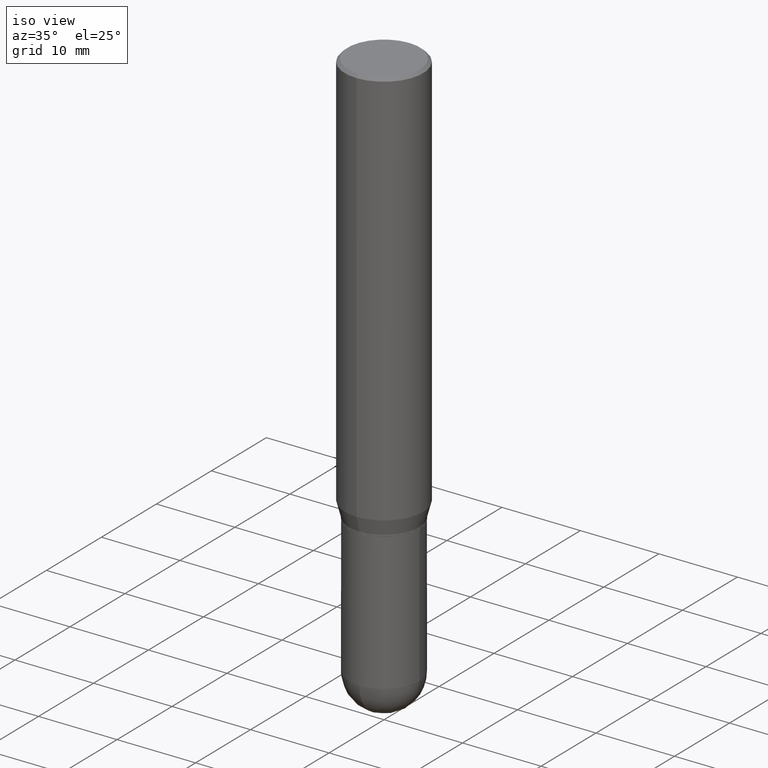
[diagram: clean part render]
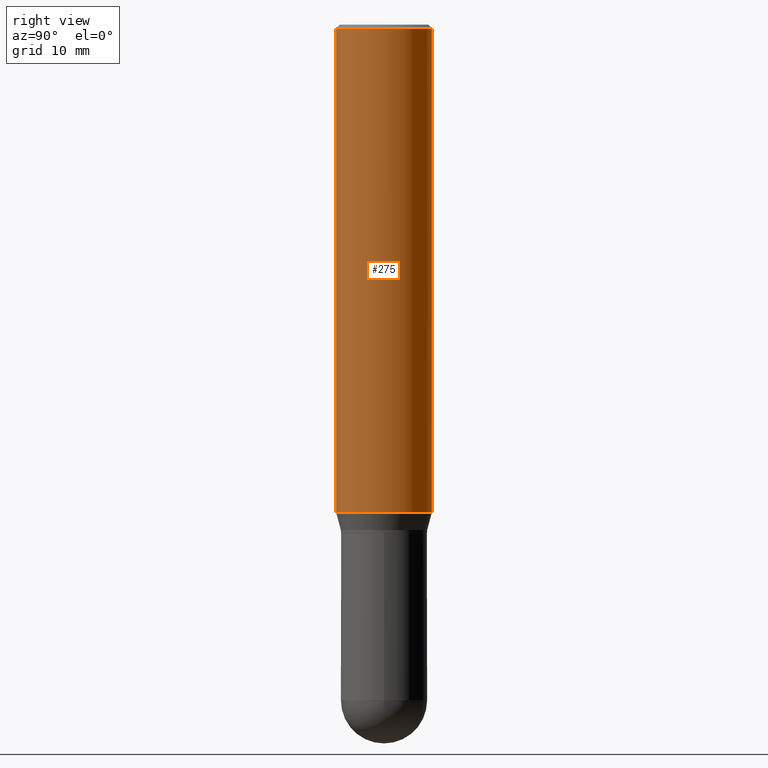
[diagram: tour spotlight — one face highlighted and labeled with its STEP entity id]
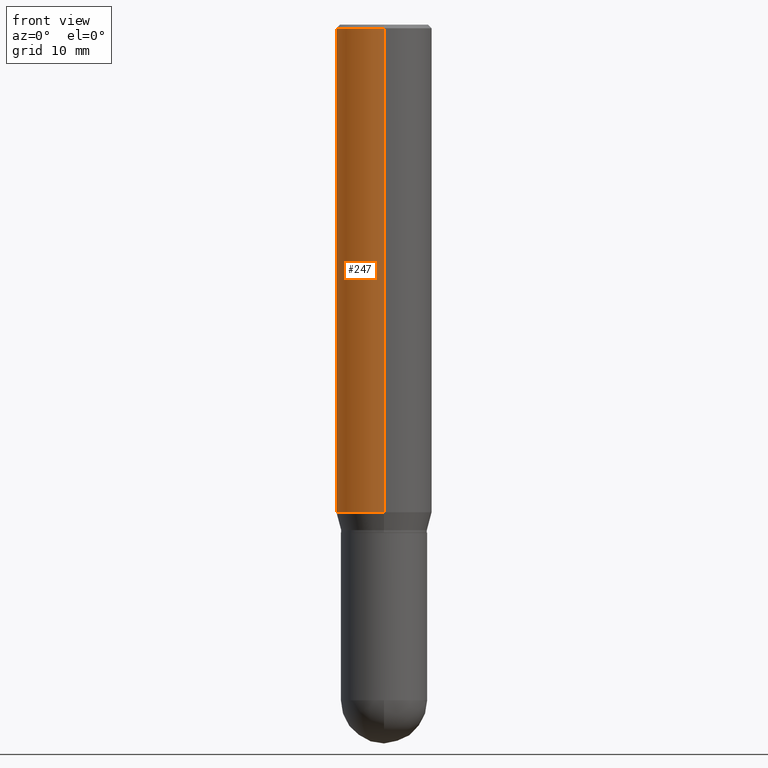
[diagram: tour spotlight — one face highlighted and labeled with its STEP entity id]
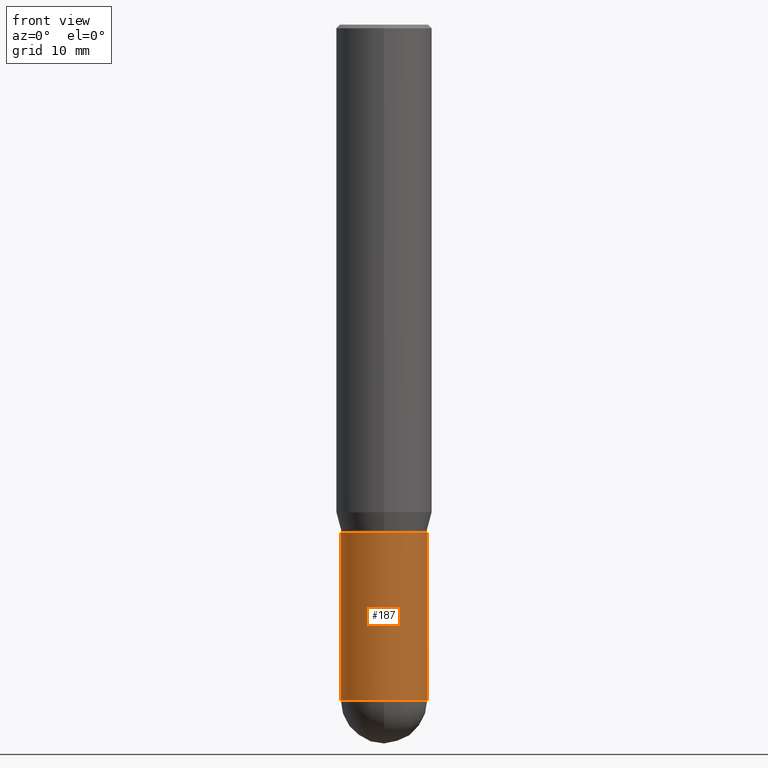
[diagram: tour spotlight — one face highlighted and labeled with its STEP entity id]
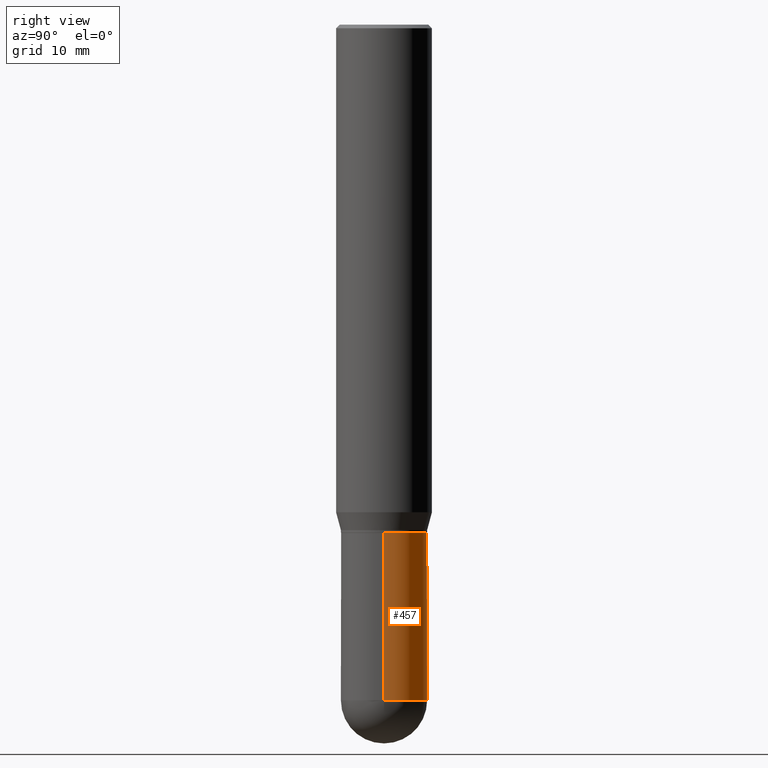
[diagram: tour spotlight — one face highlighted and labeled with its STEP entity id]
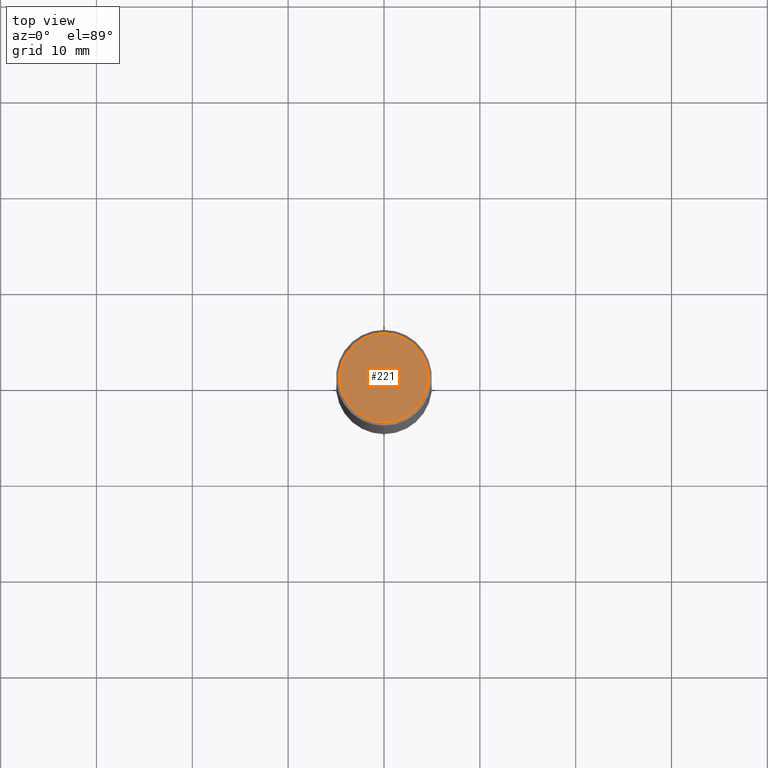
[diagram: tour spotlight — one face highlighted and labeled with its STEP entity id]
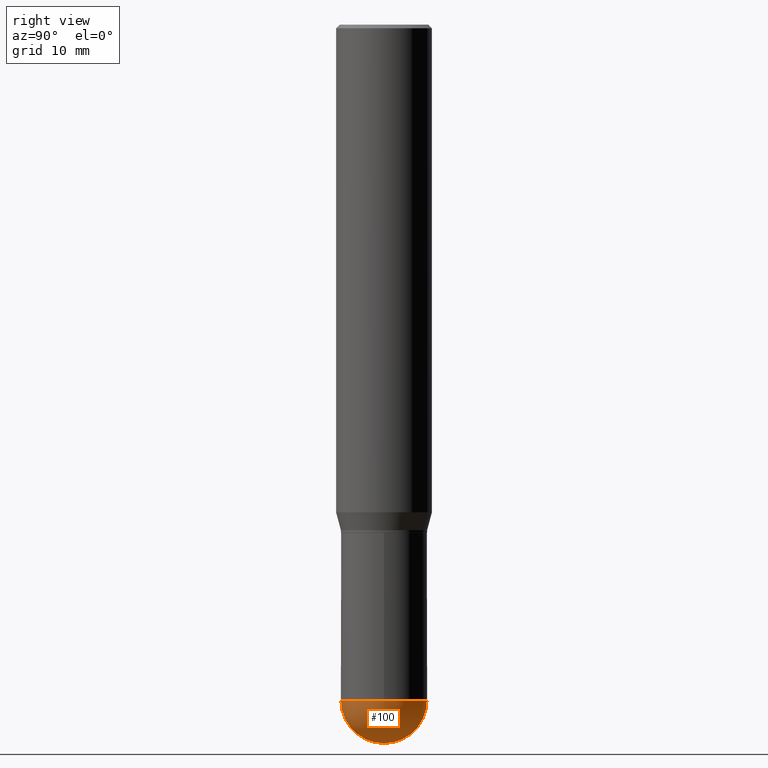
[diagram: tour spotlight — one face highlighted and labeled with its STEP entity id]
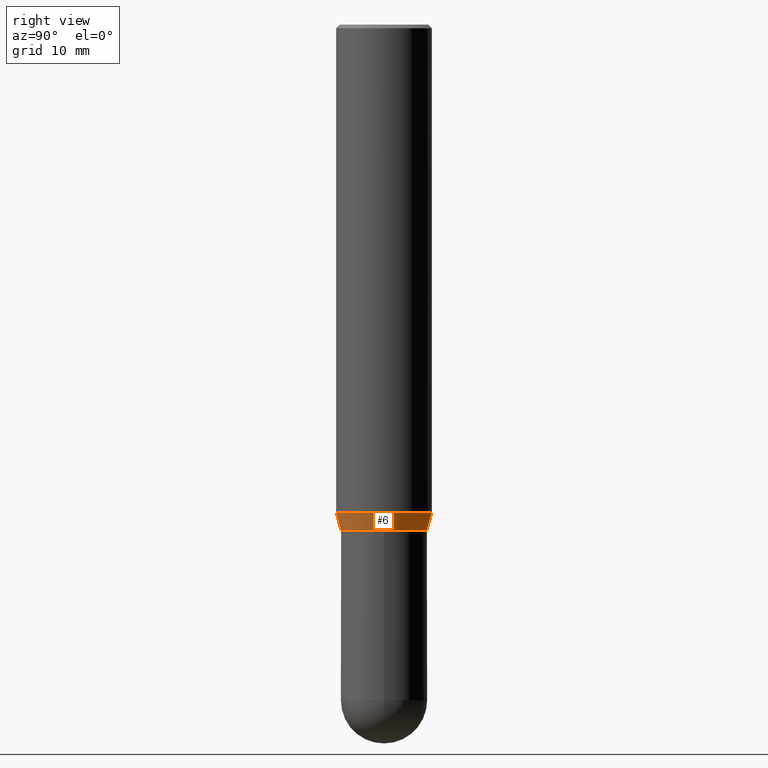
[diagram: tour spotlight — one face highlighted and labeled with its STEP entity id]
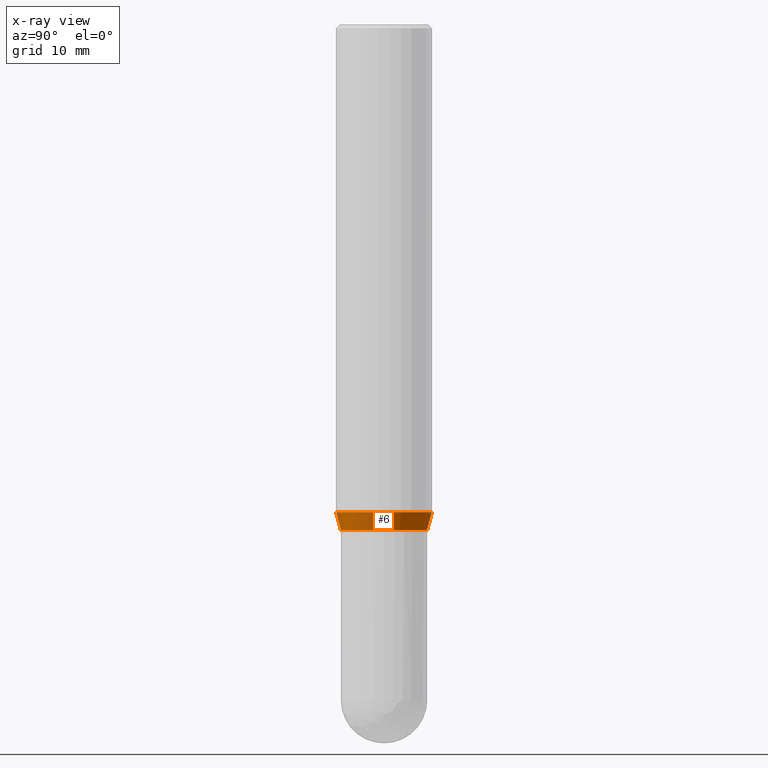
[diagram: x-ray of the same camera — body ghosted, this tour face saturated]
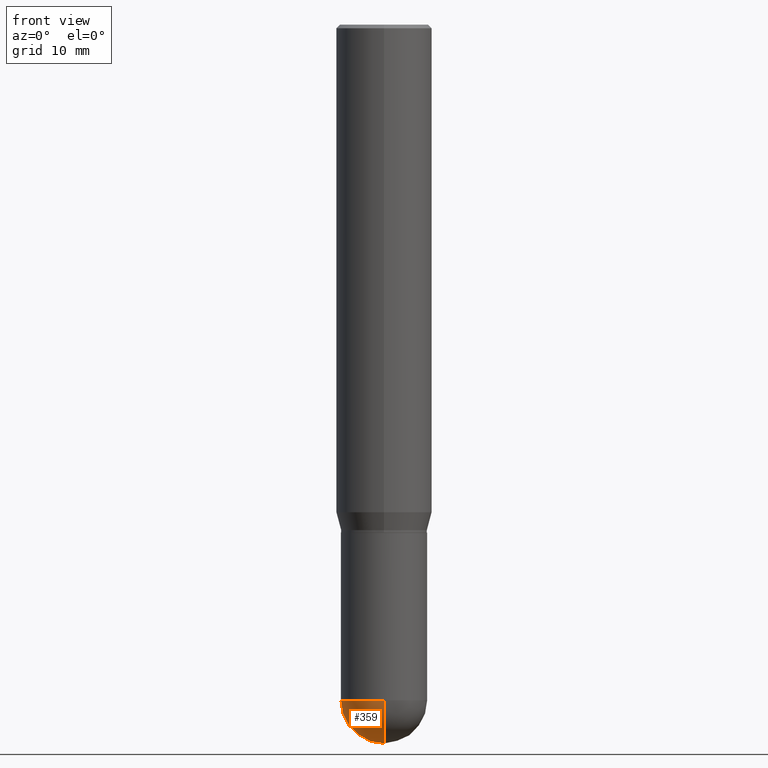
[diagram: tour spotlight — one face highlighted and labeled with its STEP entity id]
A machine part: a face-by-face anatomy tour. The part has 17 B-rep faces; the first image is the clean iso view, then the 8 largest visible faces are spotlighted one at a time (largest first), each with its STEP entity span.

Face 1 — right view, entity #275. In plain terms, the highlighted cylindrical surface (partial cylindrical patch) has radius 5 mm, axis along (-0, 0, 1).
Definition (entity closure, byte-faithful):
#23 = CIRCLE ( 'NONE', #377, 0.1968500000000000250 ) ;
#25 = DIRECTION ( 'NONE',  ( -6.982962677686265133E-15, -1.000000000000000000, 3.491137977679279424E-15 ) ) ;
#40 = CARTESIAN_POINT ( 'NONE',  ( 4.898810272835023287E-29, -6.993918213818736986E-15, -2.003178599090893464 ) ) ;
#47 = DIRECTION ( 'NONE',  ( -6.982962677686265922E-15, -1.000000000000000000, 4.163344669033675634E-15 ) ) ;
#58 = CYLINDRICAL_SURFACE ( 'NONE', #434, 0.1968499999999999694 ) ;
#82 = CIRCLE ( 'NONE', #361, 0.1968499999999999694 ) ;
#84 = VECTOR ( 'NONE', #116, 39.37007874015748143 ) ;
#103 = CARTESIAN_POINT ( 'NONE',  ( 1.398703375343756802E-15, 0.1968499999999999694, -6.872840998875648867E-16 ) ) ;
#107 = DIRECTION ( 'NONE',  ( -2.445518475016785291E-29, 3.491410210249250493E-15, 1.000000000000000000 ) ) ;
#113 = EDGE_LOOP ( 'NONE', ( #358, #182, #274, #266 ) ) ;
#116 = DIRECTION ( 'NONE',  ( -2.445518475016785291E-29, 3.491410210249250493E-15, 1.000000000000000000 ) ) ;
#131 = EDGE_CURVE ( 'NONE', #363, #279, #82, .T. ) ;
#135 = CARTESIAN_POINT ( 'NONE',  ( 0.000000000000000000, 0.000000000000000000, 0.000000000000000000 ) ) ;
#146 = CARTESIAN_POINT ( 'NONE',  ( 3.668277712525295050E-31, -5.237115315374042436E-17, -0.01500000000000047823 ) ) ;
#150 = CARTESIAN_POINT ( 'NONE',  ( -1.374596203102492502E-15, -0.1968500000000069916, -2.003178599090893020 ) ) ;
#182 = ORIENTED_EDGE ( 'NONE', *, *, #475, .T. ) ;
#193 = VERTEX_POINT ( 'NONE', #299 ) ;
#214 = LINE ( 'NONE', #103, #478 ) ;
#231 = LINE ( 'NONE', #378, #84 ) ;
#232 = VERTEX_POINT ( 'NONE', #297 ) ;
#251 = CARTESIAN_POINT ( 'NONE',  ( 1.398703375343805514E-15, 0.1968499999999929750, -2.003178599090894352 ) ) ;
#266 = ORIENTED_EDGE ( 'NONE', *, *, #343, .F. ) ;
#274 = ORIENTED_EDGE ( 'NONE', *, *, #320, .F. ) ;
#275 = ADVANCED_FACE ( 'NONE', ( #482 ), #58, .T. ) ;
#279 = VERTEX_POINT ( 'NONE', #251 ) ;
#297 = CARTESIAN_POINT ( 'NONE',  ( 1.398703375343806303E-15, 0.1968499999999999139, -0.01500000000000116518 ) ) ;
#299 = CARTESIAN_POINT ( 'NONE',  ( -1.374596203102541017E-15, -0.1968500000000000805, -0.01499999999999979128 ) ) ;
#320 = EDGE_CURVE ( 'NONE', #193, #232, #23, .T. ) ;
#321 = DIRECTION ( 'NONE',  ( -2.445518475016785291E-29, 3.491410210249250493E-15, 1.000000000000000000 ) ) ;
#343 = EDGE_CURVE ( 'NONE', #363, #193, #231, .T. ) ;
#358 = ORIENTED_EDGE ( 'NONE', *, *, #131, .T. ) ;
#361 = AXIS2_PLACEMENT_3D ( 'NONE', #40, #321, #47 ) ;
#363 = VERTEX_POINT ( 'NONE', #150 ) ;
#373 = DIRECTION ( 'NONE',  ( -6.982962677686265922E-15, -1.000000000000000000, 3.491410210249250493E-15 ) ) ;
#377 = AXIS2_PLACEMENT_3D ( 'NONE', #146, #462, #25 ) ;
#378 = CARTESIAN_POINT ( 'NONE',  ( -1.374596203102541214E-15, -0.1968499999999999694, 6.872840998875648867E-16 ) ) ;
#434 = AXIS2_PLACEMENT_3D ( 'NONE', #135, #438, #373 ) ;
#438 = DIRECTION ( 'NONE',  ( -2.445518475016785291E-29, 3.491410210249250493E-15, 1.000000000000000000 ) ) ;
#462 = DIRECTION ( 'NONE',  ( -2.445518475016785291E-29, 3.491410210249250493E-15, 1.000000000000000000 ) ) ;
#475 = EDGE_CURVE ( 'NONE', #279, #232, #214, .T. ) ;
#478 = VECTOR ( 'NONE', #107, 39.37007874015748143 ) ;
#482 = FACE_OUTER_BOUND ( 'NONE', #113, .T. ) ;

Face 2 — front view, entity #247. In plain terms, the highlighted cylindrical surface (partial cylindrical patch) has radius 5 mm, axis along (-0, 0, 1).
Definition (entity closure, byte-faithful):
#56 = EDGE_CURVE ( 'NONE', #279, #363, #167, .T. ) ;
#65 = EDGE_CURVE ( 'NONE', #232, #193, #460, .T. ) ;
#70 = AXIS2_PLACEMENT_3D ( 'NONE', #91, #396, #125 ) ;
#84 = VECTOR ( 'NONE', #116, 39.37007874015748143 ) ;
#91 = CARTESIAN_POINT ( 'NONE',  ( 4.898810272835023287E-29, -6.993918213818736986E-15, -2.003178599090893464 ) ) ;
#103 = CARTESIAN_POINT ( 'NONE',  ( 1.398703375343756802E-15, 0.1968499999999999694, -6.872840998875648867E-16 ) ) ;
#107 = DIRECTION ( 'NONE',  ( -2.445518475016785291E-29, 3.491410210249250493E-15, 1.000000000000000000 ) ) ;
#116 = DIRECTION ( 'NONE',  ( -2.445518475016785291E-29, 3.491410210249250493E-15, 1.000000000000000000 ) ) ;
#125 = DIRECTION ( 'NONE',  ( -6.982962677686265922E-15, -1.000000000000000000, 4.163344669033675634E-15 ) ) ;
#150 = CARTESIAN_POINT ( 'NONE',  ( -1.374596203102492502E-15, -0.1968500000000069916, -2.003178599090893020 ) ) ;
#164 = ORIENTED_EDGE ( 'NONE', *, *, #65, .F. ) ;
#167 = CIRCLE ( 'NONE', #70, 0.1968499999999999694 ) ;
#173 = ORIENTED_EDGE ( 'NONE', *, *, #56, .T. ) ;
#174 = DIRECTION ( 'NONE',  ( -2.445518475016785291E-29, 3.491410210249250493E-15, 1.000000000000000000 ) ) ;
#193 = VERTEX_POINT ( 'NONE', #299 ) ;
#205 = CARTESIAN_POINT ( 'NONE',  ( 3.668277712525295050E-31, -5.237115315374042436E-17, -0.01500000000000047823 ) ) ;
#214 = LINE ( 'NONE', #103, #478 ) ;
#223 = FACE_OUTER_BOUND ( 'NONE', #262, .T. ) ;
#231 = LINE ( 'NONE', #378, #84 ) ;
#232 = VERTEX_POINT ( 'NONE', #297 ) ;
#247 = ADVANCED_FACE ( 'NONE', ( #223 ), #292, .T. ) ;
#251 = CARTESIAN_POINT ( 'NONE',  ( 1.398703375343805514E-15, 0.1968499999999929750, -2.003178599090894352 ) ) ;
#262 = EDGE_LOOP ( 'NONE', ( #379, #173, #350, #164 ) ) ;
#279 = VERTEX_POINT ( 'NONE', #251 ) ;
#292 = CYLINDRICAL_SURFACE ( 'NONE', #472, 0.1968499999999999694 ) ;
#297 = CARTESIAN_POINT ( 'NONE',  ( 1.398703375343806303E-15, 0.1968499999999999139, -0.01500000000000116518 ) ) ;
#299 = CARTESIAN_POINT ( 'NONE',  ( -1.374596203102541017E-15, -0.1968500000000000805, -0.01499999999999979128 ) ) ;
#324 = AXIS2_PLACEMENT_3D ( 'NONE', #205, #400, #476 ) ;
#328 = DIRECTION ( 'NONE',  ( -6.982962677686265922E-15, -1.000000000000000000, 3.491410210249250493E-15 ) ) ;
#343 = EDGE_CURVE ( 'NONE', #363, #193, #231, .T. ) ;
#350 = ORIENTED_EDGE ( 'NONE', *, *, #343, .T. ) ;
#363 = VERTEX_POINT ( 'NONE', #150 ) ;
#378 = CARTESIAN_POINT ( 'NONE',  ( -1.374596203102541214E-15, -0.1968499999999999694, 6.872840998875648867E-16 ) ) ;
#379 = ORIENTED_EDGE ( 'NONE', *, *, #475, .F. ) ;
#396 = DIRECTION ( 'NONE',  ( -2.445518475016785291E-29, 3.491410210249250493E-15, 1.000000000000000000 ) ) ;
#400 = DIRECTION ( 'NONE',  ( -2.445518475016785291E-29, 3.491410210249250493E-15, 1.000000000000000000 ) ) ;
#402 = CARTESIAN_POINT ( 'NONE',  ( 0.000000000000000000, 0.000000000000000000, 0.000000000000000000 ) ) ;
#460 = CIRCLE ( 'NONE', #324, 0.1968500000000000250 ) ;
#472 = AXIS2_PLACEMENT_3D ( 'NONE', #402, #174, #328 ) ;
#475 = EDGE_CURVE ( 'NONE', #279, #232, #214, .T. ) ;
#476 = DIRECTION ( 'NONE',  ( -6.982962677686265133E-15, -1.000000000000000000, 3.491137977679279424E-15 ) ) ;
#478 = VECTOR ( 'NONE', #107, 39.37007874015748143 ) ;

Face 3 — front view, entity #187. In plain terms, the highlighted cylindrical surface (partial cylindrical patch) has radius 4.4996 mm, axis along (-0, 0, 1).
Definition (entity closure, byte-faithful):
#44 = EDGE_CURVE ( 'NONE', #287, #480, #217, .T. ) ;
#61 = LINE ( 'NONE', #139, #168 ) ;
#66 = DIRECTION ( 'NONE',  ( 1.000000000000000000, -6.982962677686266711E-15, 4.876176775795934672E-29 ) ) ;
#89 = CARTESIAN_POINT ( 'NONE',  ( 6.787765491887772680E-29, -9.691130178159974964E-15, -2.775649999999999729 ) ) ;
#96 = AXIS2_PLACEMENT_3D ( 'NONE', #326, #126, #477 ) ;
#97 = DIRECTION ( 'NONE',  ( -2.445468806185136597E-29, 3.491481338843145583E-15, 1.000000000000000000 ) ) ;
#99 = LINE ( 'NONE', #330, #440 ) ;
#106 = EDGE_CURVE ( 'NONE', #300, #309, #302, .T. ) ;
#111 = ORIENTED_EDGE ( 'NONE', *, *, #44, .F. ) ;
#114 = AXIS2_PLACEMENT_3D ( 'NONE', #89, #163, #436 ) ;
#126 = DIRECTION ( 'NONE',  ( -2.445468806185136597E-29, 3.491481338843145583E-15, 1.000000000000000000 ) ) ;
#137 = CIRCLE ( 'NONE', #503, 0.1771500000000000574 ) ;
#139 = CARTESIAN_POINT ( 'NONE',  ( -0.1771500000000000574, 1.258726456399017887E-15, -8.713893512386568128E-30 ) ) ;
#163 = DIRECTION ( 'NONE',  ( -2.445468806185136597E-29, 3.491481338843145583E-15, 1.000000000000000000 ) ) ;
#168 = VECTOR ( 'NONE', #222, 39.37007874015748143 ) ;
#181 = CYLINDRICAL_SURFACE ( 'NONE', #511, 0.1771500000000000574 ) ;
#187 = ADVANCED_FACE ( 'NONE', ( #367 ), #181, .T. ) ;
#217 = CIRCLE ( 'NONE', #96, 0.1771500000000000852 ) ;
#222 = DIRECTION ( 'NONE',  ( -2.445468806185136877E-29, 3.491481338843145188E-15, 1.000000000000000000 ) ) ;
#264 = EDGE_CURVE ( 'NONE', #300, #287, #61, .T. ) ;
#269 = DIRECTION ( 'NONE',  ( 1.000000000000000000, -6.982962677686270655E-15, 0.000000000000000000 ) ) ;
#287 = VERTEX_POINT ( 'NONE', #365 ) ;
#294 = CARTESIAN_POINT ( 'NONE',  ( 0.000000000000000000, 0.000000000000000000, 0.000000000000000000 ) ) ;
#298 = DIRECTION ( 'NONE',  ( -2.445468806185136877E-29, 3.491481338843145188E-15, 1.000000000000000000 ) ) ;
#300 = VERTEX_POINT ( 'NONE', #499 ) ;
#302 = CIRCLE ( 'NONE', #114, 0.1771500000000000574 ) ;
#308 = CARTESIAN_POINT ( 'NONE',  ( 6.787765491887772680E-29, -9.691130178159974964E-15, -2.775649999999999729 ) ) ;
#309 = VERTEX_POINT ( 'NONE', #315 ) ;
#310 = DIRECTION ( 'NONE',  ( -2.445468806185136597E-29, 3.491481338843145583E-15, 1.000000000000000000 ) ) ;
#312 = ORIENTED_EDGE ( 'NONE', *, *, #479, .T. ) ;
#313 = EDGE_CURVE ( 'NONE', #309, #316, #137, .T. ) ;
#315 = CARTESIAN_POINT ( 'NONE',  ( -1.258726456398949454E-15, -0.1771500000000097441, -2.775649999999999284 ) ) ;
#316 = VERTEX_POINT ( 'NONE', #414 ) ;
#326 = CARTESIAN_POINT ( 'NONE',  ( 5.102959757866523939E-29, -7.285674109763990928E-15, -2.086699999999999999 ) ) ;
#330 = CARTESIAN_POINT ( 'NONE',  ( 0.1771500000000000574, -1.237031838352122591E-15, 8.638147158322501361E-30 ) ) ;
#334 = CARTESIAN_POINT ( 'NONE',  ( 0.1771500000000000852, -8.522705948116114900E-15, -2.086699999999999999 ) ) ;
#356 = ORIENTED_EDGE ( 'NONE', *, *, #313, .T. ) ;
#365 = CARTESIAN_POINT ( 'NONE',  ( -0.1771500000000000852, -7.229675687562965256E-15, -2.086699999999999999 ) ) ;
#367 = FACE_OUTER_BOUND ( 'NONE', #419, .T. ) ;
#385 = ORIENTED_EDGE ( 'NONE', *, *, #106, .T. ) ;
#414 = CARTESIAN_POINT ( 'NONE',  ( 0.1771500000000000574, -9.725433982314104551E-15, -2.775649999999999729 ) ) ;
#419 = EDGE_LOOP ( 'NONE', ( #500, #385, #356, #312, #111 ) ) ;
#436 = DIRECTION ( 'NONE',  ( 1.000000000000000000, -6.982962677686270655E-15, 0.000000000000000000 ) ) ;
#440 = VECTOR ( 'NONE', #298, 39.37007874015748143 ) ;
#477 = DIRECTION ( 'NONE',  ( 1.000000000000000000, -6.982962677686269077E-15, 0.000000000000000000 ) ) ;
#479 = EDGE_CURVE ( 'NONE', #316, #480, #99, .T. ) ;
#480 = VERTEX_POINT ( 'NONE', #334 ) ;
#499 = CARTESIAN_POINT ( 'NONE',  ( -0.1771500000000000574, -7.229675687562965256E-15, -2.775649999999999729 ) ) ;
#500 = ORIENTED_EDGE ( 'NONE', *, *, #264, .F. ) ;
#503 = AXIS2_PLACEMENT_3D ( 'NONE', #308, #310, #269 ) ;
#511 = AXIS2_PLACEMENT_3D ( 'NONE', #294, #97, #66 ) ;

Face 4 — right view, entity #457. In plain terms, the highlighted cylindrical surface (partial cylindrical patch) has radius 4.4996 mm, axis along (-0, 0, 1).
Definition (entity closure, byte-faithful):
#1 = CARTESIAN_POINT ( 'NONE',  ( 6.787765491887772680E-29, -9.691130178159974964E-15, -2.775649999999999729 ) ) ;
#4 = ORIENTED_EDGE ( 'NONE', *, *, #204, .T. ) ;
#7 = CARTESIAN_POINT ( 'NONE',  ( 1.237031838352190236E-15, 0.1771499999999903430, -2.775650000000000173 ) ) ;
#15 = AXIS2_PLACEMENT_3D ( 'NONE', #1, #360, #170 ) ;
#16 = EDGE_CURVE ( 'NONE', #316, #132, #152, .T. ) ;
#28 = CARTESIAN_POINT ( 'NONE',  ( 5.102959757866523939E-29, -7.285674109763990928E-15, -2.086699999999999999 ) ) ;
#41 = CIRCLE ( 'NONE', #484, 0.1771500000000000574 ) ;
#61 = LINE ( 'NONE', #139, #168 ) ;
#80 = FACE_OUTER_BOUND ( 'NONE', #351, .T. ) ;
#99 = LINE ( 'NONE', #330, #440 ) ;
#110 = CYLINDRICAL_SURFACE ( 'NONE', #243, 0.1771500000000000574 ) ;
#132 = VERTEX_POINT ( 'NONE', #7 ) ;
#139 = CARTESIAN_POINT ( 'NONE',  ( -0.1771500000000000574, 1.258726456399017887E-15, -8.713893512386568128E-30 ) ) ;
#140 = DIRECTION ( 'NONE',  ( -2.445468806185136597E-29, 3.491481338843145583E-15, 1.000000000000000000 ) ) ;
#152 = CIRCLE ( 'NONE', #15, 0.1771500000000000574 ) ;
#168 = VECTOR ( 'NONE', #222, 39.37007874015748143 ) ;
#170 = DIRECTION ( 'NONE',  ( 1.000000000000000000, -6.982962677686270655E-15, 0.000000000000000000 ) ) ;
#192 = DIRECTION ( 'NONE',  ( 1.000000000000000000, -6.982962677686269077E-15, 0.000000000000000000 ) ) ;
#204 = EDGE_CURVE ( 'NONE', #132, #300, #41, .T. ) ;
#208 = ORIENTED_EDGE ( 'NONE', *, *, #479, .F. ) ;
#222 = DIRECTION ( 'NONE',  ( -2.445468806185136877E-29, 3.491481338843145188E-15, 1.000000000000000000 ) ) ;
#243 = AXIS2_PLACEMENT_3D ( 'NONE', #265, #496, #305 ) ;
#264 = EDGE_CURVE ( 'NONE', #300, #287, #61, .T. ) ;
#265 = CARTESIAN_POINT ( 'NONE',  ( 0.000000000000000000, 0.000000000000000000, 0.000000000000000000 ) ) ;
#287 = VERTEX_POINT ( 'NONE', #365 ) ;
#298 = DIRECTION ( 'NONE',  ( -2.445468806185136877E-29, 3.491481338843145188E-15, 1.000000000000000000 ) ) ;
#300 = VERTEX_POINT ( 'NONE', #499 ) ;
#305 = DIRECTION ( 'NONE',  ( 1.000000000000000000, -6.982962677686266711E-15, 4.876176775795934672E-29 ) ) ;
#316 = VERTEX_POINT ( 'NONE', #414 ) ;
#330 = CARTESIAN_POINT ( 'NONE',  ( 0.1771500000000000574, -1.237031838352122591E-15, 8.638147158322501361E-30 ) ) ;
#331 = DIRECTION ( 'NONE',  ( 1.000000000000000000, -6.982962677686270655E-15, 0.000000000000000000 ) ) ;
#334 = CARTESIAN_POINT ( 'NONE',  ( 0.1771500000000000852, -8.522705948116114900E-15, -2.086699999999999999 ) ) ;
#344 = ORIENTED_EDGE ( 'NONE', *, *, #432, .F. ) ;
#345 = DIRECTION ( 'NONE',  ( -2.445468806185136597E-29, 3.491481338843145583E-15, 1.000000000000000000 ) ) ;
#346 = CIRCLE ( 'NONE', #449, 0.1771500000000000852 ) ;
#351 = EDGE_LOOP ( 'NONE', ( #4, #391, #344, #208, #509 ) ) ;
#360 = DIRECTION ( 'NONE',  ( -2.445468806185136597E-29, 3.491481338843145583E-15, 1.000000000000000000 ) ) ;
#365 = CARTESIAN_POINT ( 'NONE',  ( -0.1771500000000000852, -7.229675687562965256E-15, -2.086699999999999999 ) ) ;
#391 = ORIENTED_EDGE ( 'NONE', *, *, #264, .T. ) ;
#414 = CARTESIAN_POINT ( 'NONE',  ( 0.1771500000000000574, -9.725433982314104551E-15, -2.775649999999999729 ) ) ;
#432 = EDGE_CURVE ( 'NONE', #480, #287, #346, .T. ) ;
#440 = VECTOR ( 'NONE', #298, 39.37007874015748143 ) ;
#442 = CARTESIAN_POINT ( 'NONE',  ( 6.787765491887772680E-29, -9.691130178159974964E-15, -2.775649999999999729 ) ) ;
#449 = AXIS2_PLACEMENT_3D ( 'NONE', #28, #345, #192 ) ;
#457 = ADVANCED_FACE ( 'NONE', ( #80 ), #110, .T. ) ;
#479 = EDGE_CURVE ( 'NONE', #316, #480, #99, .T. ) ;
#480 = VERTEX_POINT ( 'NONE', #334 ) ;
#484 = AXIS2_PLACEMENT_3D ( 'NONE', #442, #140, #331 ) ;
#496 = DIRECTION ( 'NONE',  ( -2.445468806185136597E-29, 3.491481338843145583E-15, 1.000000000000000000 ) ) ;
#499 = CARTESIAN_POINT ( 'NONE',  ( -0.1771500000000000574, -7.229675687562965256E-15, -2.775649999999999729 ) ) ;
#509 = ORIENTED_EDGE ( 'NONE', *, *, #16, .T. ) ;

Face 5 — top view, entity #221. In plain terms, the highlighted planar face has unit normal (0, -0, -1).
Definition (entity closure, byte-faithful):
#48 = CIRCLE ( 'NONE', #353, 0.1818500000000000116 ) ;
#104 = CARTESIAN_POINT ( 'NONE',  ( 1.322223983019894726E-15, 0.1818500000000000116, -1.113623735444311959E-15 ) ) ;
#141 = DIRECTION ( 'NONE',  ( -6.982962677686265133E-15, -1.000000000000000000, 3.491410210249250888E-15 ) ) ;
#147 = EDGE_CURVE ( 'NONE', #317, #202, #48, .T. ) ;
#177 = FACE_OUTER_BOUND ( 'NONE', #348, .T. ) ;
#197 = CIRCLE ( 'NONE', #388, 0.1818500000000000116 ) ;
#202 = VERTEX_POINT ( 'NONE', #104 ) ;
#216 = CARTESIAN_POINT ( 'NONE',  ( 1.170696077981349666E-44, -1.671375735460261501E-30, -4.787107887104857586E-16 ) ) ;
#221 = ADVANCED_FACE ( 'NONE', ( #177 ), #303, .F. ) ;
#260 = DIRECTION ( 'NONE',  ( -2.445518475016785291E-29, 3.491410210249250493E-15, 1.000000000000000000 ) ) ;
#277 = ORIENTED_EDGE ( 'NONE', *, *, #147, .T. ) ;
#283 = DIRECTION ( 'NONE',  ( -2.445518475016785291E-29, 3.491410210249250493E-15, 1.000000000000000000 ) ) ;
#303 = PLANE ( 'NONE',  #329 ) ;
#304 = ORIENTED_EDGE ( 'NONE', *, *, #468, .T. ) ;
#317 = VERTEX_POINT ( 'NONE', #418 ) ;
#327 = DIRECTION ( 'NONE',  ( 2.445518475016784731E-29, -3.491410210249250493E-15, -1.000000000000000000 ) ) ;
#329 = AXIS2_PLACEMENT_3D ( 'NONE', #486, #327, #335 ) ;
#335 = DIRECTION ( 'NONE',  ( 6.982962677686265922E-15, 1.000000000000000000, -3.491410210249250493E-15 ) ) ;
#348 = EDGE_LOOP ( 'NONE', ( #304, #277 ) ) ;
#353 = AXIS2_PLACEMENT_3D ( 'NONE', #473, #283, #393 ) ;
#388 = AXIS2_PLACEMENT_3D ( 'NONE', #216, #260, #141 ) ;
#393 = DIRECTION ( 'NONE',  ( -6.982962677686265133E-15, -1.000000000000000000, 3.491410210249250888E-15 ) ) ;
#418 = CARTESIAN_POINT ( 'NONE',  ( -1.299035295878039226E-15, -0.1818500000000000116, 1.562021580233405403E-16 ) ) ;
#468 = EDGE_CURVE ( 'NONE', #202, #317, #197, .T. ) ;
#473 = CARTESIAN_POINT ( 'NONE',  ( 1.170696077981349666E-44, -1.671375735460261501E-30, -4.787107887104857586E-16 ) ) ;
#486 = CARTESIAN_POINT ( 'NONE',  ( 1.269851762937247450E-15, 0.1818500000000000116, -8.742683410890690304E-16 ) ) ;

Face 6 — right view, entity #100. In plain terms, the highlighted spherical surface has radius 4.4996 mm.
Definition (entity closure, byte-faithful):
#1 = CARTESIAN_POINT ( 'NONE',  ( 6.787765491887772680E-29, -9.691130178159974964E-15, -2.775649999999999729 ) ) ;
#7 = CARTESIAN_POINT ( 'NONE',  ( 1.237031838352190236E-15, 0.1771499999999903430, -2.775650000000000173 ) ) ;
#9 = ORIENTED_EDGE ( 'NONE', *, *, #190, .T. ) ;
#10 = FACE_OUTER_BOUND ( 'NONE', #78, .T. ) ;
#14 = CARTESIAN_POINT ( 'NONE',  ( 6.813022828238686978E-29, -9.654960234947156736E-15, -2.775649999999999729 ) ) ;
#15 = AXIS2_PLACEMENT_3D ( 'NONE', #1, #360, #170 ) ;
#16 = EDGE_CURVE ( 'NONE', #316, #132, #152, .T. ) ;
#78 = EDGE_LOOP ( 'NONE', ( #189, #9, #456, #171 ) ) ;
#100 = ADVANCED_FACE ( 'NONE', ( #10 ), #398, .T. ) ;
#132 = VERTEX_POINT ( 'NONE', #7 ) ;
#137 = CIRCLE ( 'NONE', #503, 0.1771500000000000574 ) ;
#152 = CIRCLE ( 'NONE', #15, 0.1771500000000000574 ) ;
#165 = EDGE_CURVE ( 'NONE', #427, #309, #268, .T. ) ;
#170 = DIRECTION ( 'NONE',  ( 1.000000000000000000, -6.982962677686270655E-15, 0.000000000000000000 ) ) ;
#171 = ORIENTED_EDGE ( 'NONE', *, *, #313, .F. ) ;
#189 = ORIENTED_EDGE ( 'NONE', *, *, #165, .F. ) ;
#190 = EDGE_CURVE ( 'NONE', #427, #132, #439, .T. ) ;
#203 = AXIS2_PLACEMENT_3D ( 'NONE', #14, #446, #332 ) ;
#215 = CARTESIAN_POINT ( 'NONE',  ( 6.813022828238686978E-29, -9.654960234947156736E-15, -2.775649999999999729 ) ) ;
#261 = DIRECTION ( 'NONE',  ( -7.105427357600999492E-15, -1.000000000000000000, 0.000000000000000000 ) ) ;
#268 = CIRCLE ( 'NONE', #319, 0.1771500000000000574 ) ;
#269 = DIRECTION ( 'NONE',  ( 1.000000000000000000, -6.982962677686270655E-15, 0.000000000000000000 ) ) ;
#280 = AXIS2_PLACEMENT_3D ( 'NONE', #394, #429, #289 ) ;
#289 = DIRECTION ( 'NONE',  ( 6.982962677686265133E-15, 1.000000000000000000, -3.084220145260245435E-15 ) ) ;
#308 = CARTESIAN_POINT ( 'NONE',  ( 6.787765491887772680E-29, -9.691130178159974964E-15, -2.775649999999999729 ) ) ;
#309 = VERTEX_POINT ( 'NONE', #315 ) ;
#310 = DIRECTION ( 'NONE',  ( -2.445468806185136597E-29, 3.491481338843145583E-15, 1.000000000000000000 ) ) ;
#313 = EDGE_CURVE ( 'NONE', #309, #316, #137, .T. ) ;
#315 = CARTESIAN_POINT ( 'NONE',  ( -1.258726456398949454E-15, -0.1771500000000097441, -2.775649999999999284 ) ) ;
#316 = VERTEX_POINT ( 'NONE', #414 ) ;
#319 = AXIS2_PLACEMENT_3D ( 'NONE', #215, #451, #261 ) ;
#332 = DIRECTION ( 'NONE',  ( 6.982962677686264344E-15, 1.000000000000000000, 0.000000000000000000 ) ) ;
#360 = DIRECTION ( 'NONE',  ( -2.445468806185136597E-29, 3.491481338843145583E-15, 1.000000000000000000 ) ) ;
#394 = CARTESIAN_POINT ( 'NONE',  ( 6.813022828238686978E-29, -9.654960234947156736E-15, -2.775649999999999729 ) ) ;
#398 = SPHERICAL_SURFACE ( 'NONE', #280, 0.1771500000000000574 ) ;
#414 = CARTESIAN_POINT ( 'NONE',  ( 0.1771500000000000574, -9.725433982314104551E-15, -2.775649999999999729 ) ) ;
#420 = CARTESIAN_POINT ( 'NONE',  ( 7.253812262660790316E-29, -1.026262884509977305E-14, -2.952799999999999869 ) ) ;
#427 = VERTEX_POINT ( 'NONE', #420 ) ;
#429 = DIRECTION ( 'NONE',  ( -1.000000000000000000, 6.982962677686265133E-15, -4.883557194083112340E-29 ) ) ;
#439 = CIRCLE ( 'NONE', #203, 0.1771500000000000574 ) ;
#446 = DIRECTION ( 'NONE',  ( 1.000000000000000000, -6.982962677686265922E-15, 4.883557194083112340E-29 ) ) ;
#451 = DIRECTION ( 'NONE',  ( -1.000000000000000000, 7.105427357601001070E-15, -4.926315508542082329E-29 ) ) ;
#456 = ORIENTED_EDGE ( 'NONE', *, *, #16, .F. ) ;
#503 = AXIS2_PLACEMENT_3D ( 'NONE', #308, #310, #269 ) ;

Face 7 — right view, entity #6. An x-ray twin of the same camera follows (body ghosted, this face saturated) — the face is partly hidden behind the body. In plain terms, the highlighted conical surface has half-angle 15 deg.
Definition (entity closure, byte-faithful):
#3 = VERTEX_POINT ( 'NONE', #431 ) ;
#5 = VECTOR ( 'NONE', #364, 39.37007874015748143 ) ;
#6 = ADVANCED_FACE ( 'NONE', ( #166 ), #368, .T. ) ;
#34 = AXIS2_PLACEMENT_3D ( 'NONE', #323, #244, #437 ) ;
#40 = CARTESIAN_POINT ( 'NONE',  ( 4.898810272835023287E-29, -6.993918213818736986E-15, -2.003178599090893464 ) ) ;
#46 = ORIENTED_EDGE ( 'NONE', *, *, #88, .F. ) ;
#47 = DIRECTION ( 'NONE',  ( -6.982962677686265922E-15, -1.000000000000000000, 4.163344669033675634E-15 ) ) ;
#54 = EDGE_CURVE ( 'NONE', #3, #510, #501, .T. ) ;
#67 = CARTESIAN_POINT ( 'NONE',  ( 1.328714915871437240E-15, 0.1771499999999927855, -2.076700000000000657 ) ) ;
#82 = CIRCLE ( 'NONE', #361, 0.1968499999999999694 ) ;
#88 = EDGE_CURVE ( 'NONE', #3, #363, #242, .T. ) ;
#131 = EDGE_CURVE ( 'NONE', #363, #279, #82, .T. ) ;
#133 = DIRECTION ( 'NONE',  ( -2.445518475016785291E-29, 3.491410210249250493E-15, 1.000000000000000000 ) ) ;
#150 = CARTESIAN_POINT ( 'NONE',  ( -1.374596203102492502E-15, -0.1968500000000069916, -2.003178599090893020 ) ) ;
#166 = FACE_OUTER_BOUND ( 'NONE', #235, .T. ) ;
#207 = CARTESIAN_POINT ( 'NONE',  ( 5.078608217067359004E-29, -7.250611583624619637E-15, -2.076700000000000212 ) ) ;
#235 = EDGE_LOOP ( 'NONE', ( #505, #245, #425, #46 ) ) ;
#242 = LINE ( 'NONE', #357, #5 ) ;
#244 = DIRECTION ( 'NONE',  ( -2.445518475016785291E-29, 3.491410210249250493E-15, 1.000000000000000000 ) ) ;
#245 = ORIENTED_EDGE ( 'NONE', *, *, #426, .T. ) ;
#251 = CARTESIAN_POINT ( 'NONE',  ( 1.398703375343805514E-15, 0.1968499999999929750, -2.003178599090894352 ) ) ;
#270 = VECTOR ( 'NONE', #338, 39.37007874015748854 ) ;
#273 = LINE ( 'NONE', #381, #270 ) ;
#279 = VERTEX_POINT ( 'NONE', #251 ) ;
#321 = DIRECTION ( 'NONE',  ( -2.445518475016785291E-29, 3.491410210249250493E-15, 1.000000000000000000 ) ) ;
#322 = DIRECTION ( 'NONE',  ( -6.982962677686265922E-15, -1.000000000000000000, 3.084220145260246224E-15 ) ) ;
#323 = CARTESIAN_POINT ( 'NONE',  ( 5.078608217067359004E-29, -7.250611583624619637E-15, -2.076700000000000212 ) ) ;
#338 = DIRECTION ( 'NONE',  ( 1.839019923739597554E-15, 0.2588190451025245697, 0.9659258262890670910 ) ) ;
#357 = CARTESIAN_POINT ( 'NONE',  ( -1.237031838352071315E-15, -0.1771500000000072461, -2.076699999999999768 ) ) ;
#361 = AXIS2_PLACEMENT_3D ( 'NONE', #40, #321, #47 ) ;
#363 = VERTEX_POINT ( 'NONE', #150 ) ;
#364 = DIRECTION ( 'NONE',  ( -1.807323732225327773E-15, -0.2588190451025178529, 0.9659258262890690894 ) ) ;
#368 = CONICAL_SURFACE ( 'NONE', #386, 0.1771500000000000019, 0.2617993877991499074 ) ;
#381 = CARTESIAN_POINT ( 'NONE',  ( 1.258726456399067980E-15, 0.1771499999999927855, -2.076700000000000657 ) ) ;
#386 = AXIS2_PLACEMENT_3D ( 'NONE', #207, #133, #322 ) ;
#425 = ORIENTED_EDGE ( 'NONE', *, *, #131, .F. ) ;
#426 = EDGE_CURVE ( 'NONE', #510, #279, #273, .T. ) ;
#431 = CARTESIAN_POINT ( 'NONE',  ( -1.237031838352071315E-15, -0.1771500000000072461, -2.076699999999999768 ) ) ;
#437 = DIRECTION ( 'NONE',  ( -6.982962677686265922E-15, -1.000000000000000000, 3.084220145260246224E-15 ) ) ;
#501 = CIRCLE ( 'NONE', #34, 0.1771500000000000019 ) ;
#505 = ORIENTED_EDGE ( 'NONE', *, *, #54, .T. ) ;
#510 = VERTEX_POINT ( 'NONE', #67 ) ;

Face 8 — front view, entity #359. In plain terms, the highlighted spherical surface has radius 4.4996 mm.
Definition (entity closure, byte-faithful):
#7 = CARTESIAN_POINT ( 'NONE',  ( 1.237031838352190236E-15, 0.1771499999999903430, -2.775650000000000173 ) ) ;
#14 = CARTESIAN_POINT ( 'NONE',  ( 6.813022828238686978E-29, -9.654960234947156736E-15, -2.775649999999999729 ) ) ;
#29 = ORIENTED_EDGE ( 'NONE', *, *, #165, .T. ) ;
#37 = SPHERICAL_SURFACE ( 'NONE', #485, 0.1771500000000000574 ) ;
#41 = CIRCLE ( 'NONE', #484, 0.1771500000000000574 ) ;
#73 = FACE_OUTER_BOUND ( 'NONE', #155, .T. ) ;
#89 = CARTESIAN_POINT ( 'NONE',  ( 6.787765491887772680E-29, -9.691130178159974964E-15, -2.775649999999999729 ) ) ;
#106 = EDGE_CURVE ( 'NONE', #300, #309, #302, .T. ) ;
#114 = AXIS2_PLACEMENT_3D ( 'NONE', #89, #163, #436 ) ;
#120 = ORIENTED_EDGE ( 'NONE', *, *, #106, .F. ) ;
#132 = VERTEX_POINT ( 'NONE', #7 ) ;
#140 = DIRECTION ( 'NONE',  ( -2.445468806185136597E-29, 3.491481338843145583E-15, 1.000000000000000000 ) ) ;
#144 = DIRECTION ( 'NONE',  ( -1.000000000000000000, 6.982962677686265133E-15, -4.883557194083112340E-29 ) ) ;
#148 = ORIENTED_EDGE ( 'NONE', *, *, #190, .F. ) ;
#155 = EDGE_LOOP ( 'NONE', ( #148, #29, #120, #463 ) ) ;
#163 = DIRECTION ( 'NONE',  ( -2.445468806185136597E-29, 3.491481338843145583E-15, 1.000000000000000000 ) ) ;
#165 = EDGE_CURVE ( 'NONE', #427, #309, #268, .T. ) ;
#190 = EDGE_CURVE ( 'NONE', #427, #132, #439, .T. ) ;
#203 = AXIS2_PLACEMENT_3D ( 'NONE', #14, #446, #332 ) ;
#204 = EDGE_CURVE ( 'NONE', #132, #300, #41, .T. ) ;
#215 = CARTESIAN_POINT ( 'NONE',  ( 6.813022828238686978E-29, -9.654960234947156736E-15, -2.775649999999999729 ) ) ;
#261 = DIRECTION ( 'NONE',  ( -7.105427357600999492E-15, -1.000000000000000000, 0.000000000000000000 ) ) ;
#268 = CIRCLE ( 'NONE', #319, 0.1771500000000000574 ) ;
#300 = VERTEX_POINT ( 'NONE', #499 ) ;
#302 = CIRCLE ( 'NONE', #114, 0.1771500000000000574 ) ;
#309 = VERTEX_POINT ( 'NONE', #315 ) ;
#315 = CARTESIAN_POINT ( 'NONE',  ( -1.258726456398949454E-15, -0.1771500000000097441, -2.775649999999999284 ) ) ;
#319 = AXIS2_PLACEMENT_3D ( 'NONE', #215, #451, #261 ) ;
#331 = DIRECTION ( 'NONE',  ( 1.000000000000000000, -6.982962677686270655E-15, 0.000000000000000000 ) ) ;
#332 = DIRECTION ( 'NONE',  ( 6.982962677686264344E-15, 1.000000000000000000, 0.000000000000000000 ) ) ;
#359 = ADVANCED_FACE ( 'NONE', ( #73 ), #37, .T. ) ;
#420 = CARTESIAN_POINT ( 'NONE',  ( 7.253812262660790316E-29, -1.026262884509977305E-14, -2.952799999999999869 ) ) ;
#427 = VERTEX_POINT ( 'NONE', #420 ) ;
#436 = DIRECTION ( 'NONE',  ( 1.000000000000000000, -6.982962677686270655E-15, 0.000000000000000000 ) ) ;
#439 = CIRCLE ( 'NONE', #203, 0.1771500000000000574 ) ;
#442 = CARTESIAN_POINT ( 'NONE',  ( 6.787765491887772680E-29, -9.691130178159974964E-15, -2.775649999999999729 ) ) ;
#446 = DIRECTION ( 'NONE',  ( 1.000000000000000000, -6.982962677686265922E-15, 4.883557194083112340E-29 ) ) ;
#451 = DIRECTION ( 'NONE',  ( -1.000000000000000000, 7.105427357601001070E-15, -4.926315508542082329E-29 ) ) ;
#458 = DIRECTION ( 'NONE',  ( 6.982962677686265133E-15, 1.000000000000000000, -3.084220145260245435E-15 ) ) ;
#463 = ORIENTED_EDGE ( 'NONE', *, *, #204, .F. ) ;
#465 = CARTESIAN_POINT ( 'NONE',  ( 6.813022828238686978E-29, -9.654960234947156736E-15, -2.775649999999999729 ) ) ;
#484 = AXIS2_PLACEMENT_3D ( 'NONE', #442, #140, #331 ) ;
#485 = AXIS2_PLACEMENT_3D ( 'NONE', #465, #144, #458 ) ;
#499 = CARTESIAN_POINT ( 'NONE',  ( -0.1771500000000000574, -7.229675687562965256E-15, -2.775649999999999729 ) ) ;